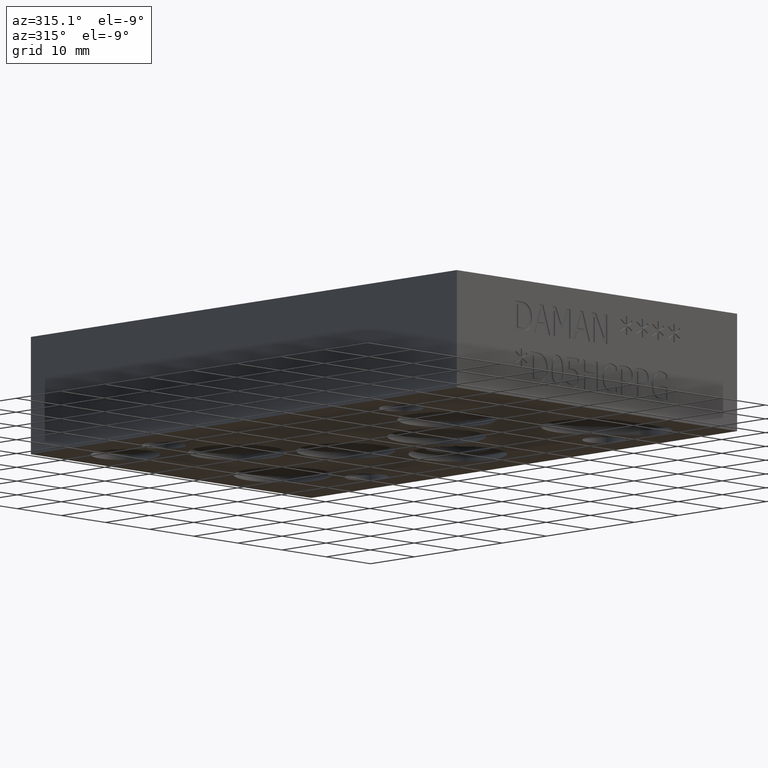
[diagram: clean part render]
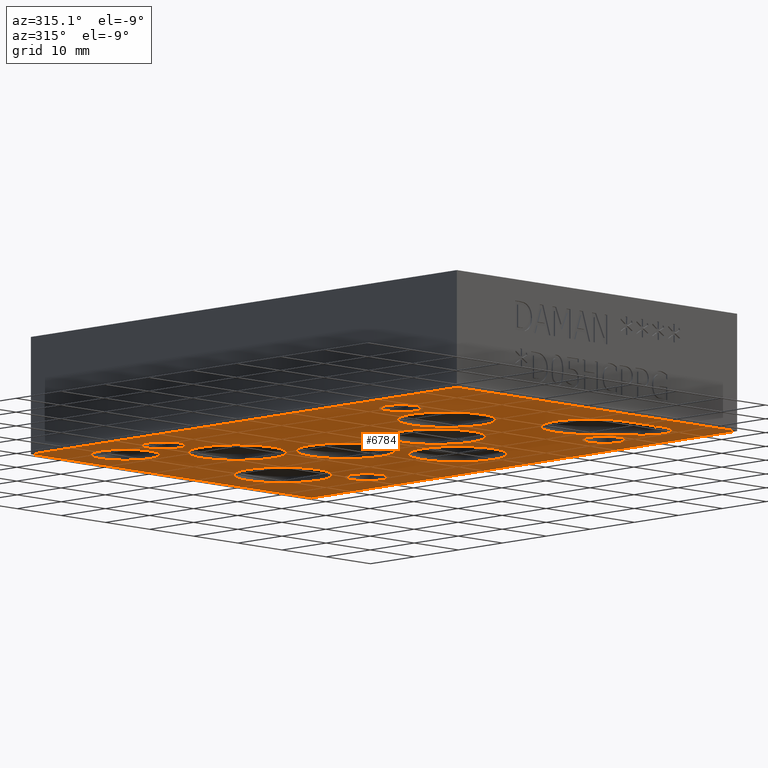
[diagram: same view with one face highlighted and labeled with its STEP entity id]
A machine part, auxiliary view. The second image highlights one B-rep face of the part: STEP entity #6784.
In plain terms, the highlighted planar face has unit normal (0, 0, 1).
Its self-contained STEP definition (entity closure, byte-faithful):
#38=CIRCLE('',#7073,0.1405);
#39=CIRCLE('',#7074,0.1405);
#40=CIRCLE('',#7075,0.1405);
#41=CIRCLE('',#7076,0.1405);
#42=CIRCLE('',#7077,0.1405);
#43=CIRCLE('',#7078,0.1405);
#44=CIRCLE('',#7079,0.1405);
#45=CIRCLE('',#7080,0.1405);
#46=CIRCLE('',#7081,0.3125);
#47=CIRCLE('',#7082,0.1875);
#48=CIRCLE('',#7083,0.3125);
#49=CIRCLE('',#7084,0.3125);
#50=CIRCLE('',#7085,0.219);
#51=CIRCLE('',#7086,0.219);
#52=CIRCLE('',#7087,0.3125);
#53=CIRCLE('',#7088,0.3125);
#54=CIRCLE('',#7089,0.3125);
#55=CIRCLE('',#7090,0.3125);
#56=CIRCLE('',#7091,0.3125);
#57=CIRCLE('',#7092,0.3125);
#58=CIRCLE('',#7093,0.3125);
#59=CIRCLE('',#7094,0.3125);
#60=CIRCLE('',#7095,0.3125);
#61=CIRCLE('',#7096,0.3125);
#113=FACE_BOUND('',#936,.T.);
#114=FACE_BOUND('',#937,.T.);
#115=FACE_BOUND('',#938,.T.);
#116=FACE_BOUND('',#939,.T.);
#117=FACE_BOUND('',#940,.T.);
#118=FACE_BOUND('',#941,.T.);
#119=FACE_BOUND('',#942,.T.);
#120=FACE_BOUND('',#943,.T.);
#121=FACE_BOUND('',#944,.T.);
#122=FACE_BOUND('',#945,.T.);
#123=FACE_BOUND('',#946,.T.);
#124=FACE_BOUND('',#947,.T.);
#548=FACE_OUTER_BOUND('',#935,.T.);
#935=EDGE_LOOP('',(#6059,#6060,#6061,#6062));
#936=EDGE_LOOP('',(#6063,#6064));
#937=EDGE_LOOP('',(#6065,#6066));
#938=EDGE_LOOP('',(#6067,#6068));
#939=EDGE_LOOP('',(#6069,#6070));
#940=EDGE_LOOP('',(#6071,#6072,#6073,#6074));
#941=EDGE_LOOP('',(#6075,#6076));
#942=EDGE_LOOP('',(#6077,#6078));
#943=EDGE_LOOP('',(#6079,#6080));
#944=EDGE_LOOP('',(#6081,#6082));
#945=EDGE_LOOP('',(#6083,#6084));
#946=EDGE_LOOP('',(#6085,#6086));
#947=EDGE_LOOP('',(#6087,#6088));
#1646=LINE('',#11595,#2379);
#1685=LINE('',#11853,#2418);
#1691=LINE('',#11866,#2424);
#1693=LINE('',#11873,#2426);
#1694=LINE('',#11875,#2427);
#1695=LINE('',#11876,#2428);
#2379=VECTOR('',#8238,2.5);
#2418=VECTOR('',#8323,0.342614195557747);
#2424=VECTOR('',#8331,0.321487157518517);
#2426=VECTOR('',#8341,3.812);
#2427=VECTOR('',#8342,2.5);
#2428=VECTOR('',#8343,3.812);
#3196=VERTEX_POINT('',#11592);
#3197=VERTEX_POINT('',#11594);
#3240=VERTEX_POINT('',#11850);
#3241=VERTEX_POINT('',#11852);
#3246=VERTEX_POINT('',#11863);
#3247=VERTEX_POINT('',#11865);
#3248=VERTEX_POINT('',#11872);
#3249=VERTEX_POINT('',#11874);
#3250=VERTEX_POINT('',#11877);
#3251=VERTEX_POINT('',#11878);
#3252=VERTEX_POINT('',#11881);
#3253=VERTEX_POINT('',#11882);
#3254=VERTEX_POINT('',#11885);
#3255=VERTEX_POINT('',#11886);
#3256=VERTEX_POINT('',#11889);
#3257=VERTEX_POINT('',#11890);
#3258=VERTEX_POINT('',#11895);
#3259=VERTEX_POINT('',#11896);
#3260=VERTEX_POINT('',#11899);
#3261=VERTEX_POINT('',#11900);
#3262=VERTEX_POINT('',#11903);
#3263=VERTEX_POINT('',#11904);
#3264=VERTEX_POINT('',#11907);
#3265=VERTEX_POINT('',#11908);
#3266=VERTEX_POINT('',#11911);
#3267=VERTEX_POINT('',#11912);
#3268=VERTEX_POINT('',#11915);
#3269=VERTEX_POINT('',#11916);
#3270=VERTEX_POINT('',#11919);
#3271=VERTEX_POINT('',#11920);
#4133=EDGE_CURVE('',#3196,#3197,#1646,.T.);
#4194=EDGE_CURVE('',#3241,#3240,#1685,.T.);
#4200=EDGE_CURVE('',#3247,#3246,#1691,.T.);
#4204=EDGE_CURVE('',#3248,#3196,#1693,.T.);
#4205=EDGE_CURVE('',#3249,#3248,#1694,.T.);
#4206=EDGE_CURVE('',#3197,#3249,#1695,.T.);
#4207=EDGE_CURVE('',#3250,#3251,#38,.T.);
#4208=EDGE_CURVE('',#3251,#3250,#39,.T.);
#4209=EDGE_CURVE('',#3252,#3253,#40,.T.);
#4210=EDGE_CURVE('',#3253,#3252,#41,.T.);
#4211=EDGE_CURVE('',#3254,#3255,#42,.T.);
#4212=EDGE_CURVE('',#3255,#3254,#43,.T.);
#4213=EDGE_CURVE('',#3256,#3257,#44,.T.);
#4214=EDGE_CURVE('',#3257,#3256,#45,.T.);
#4215=EDGE_CURVE('',#3246,#3241,#46,.T.);
#4216=EDGE_CURVE('',#3240,#3247,#47,.T.);
#4217=EDGE_CURVE('',#3258,#3259,#48,.T.);
#4218=EDGE_CURVE('',#3259,#3258,#49,.T.);
#4219=EDGE_CURVE('',#3260,#3261,#50,.T.);
#4220=EDGE_CURVE('',#3261,#3260,#51,.T.);
#4221=EDGE_CURVE('',#3262,#3263,#52,.T.);
#4222=EDGE_CURVE('',#3263,#3262,#53,.T.);
#4223=EDGE_CURVE('',#3264,#3265,#54,.T.);
#4224=EDGE_CURVE('',#3265,#3264,#55,.T.);
#4225=EDGE_CURVE('',#3266,#3267,#56,.T.);
#4226=EDGE_CURVE('',#3267,#3266,#57,.T.);
#4227=EDGE_CURVE('',#3268,#3269,#58,.T.);
#4228=EDGE_CURVE('',#3269,#3268,#59,.T.);
#4229=EDGE_CURVE('',#3270,#3271,#60,.T.);
#4230=EDGE_CURVE('',#3271,#3270,#61,.T.);
#6059=ORIENTED_EDGE('',*,*,#4133,.F.);
#6060=ORIENTED_EDGE('',*,*,#4204,.F.);
#6061=ORIENTED_EDGE('',*,*,#4205,.F.);
#6062=ORIENTED_EDGE('',*,*,#4206,.F.);
#6063=ORIENTED_EDGE('',*,*,#4207,.T.);
#6064=ORIENTED_EDGE('',*,*,#4208,.T.);
#6065=ORIENTED_EDGE('',*,*,#4209,.T.);
#6066=ORIENTED_EDGE('',*,*,#4210,.T.);
#6067=ORIENTED_EDGE('',*,*,#4211,.T.);
#6068=ORIENTED_EDGE('',*,*,#4212,.T.);
#6069=ORIENTED_EDGE('',*,*,#4213,.T.);
#6070=ORIENTED_EDGE('',*,*,#4214,.T.);
#6071=ORIENTED_EDGE('',*,*,#4200,.T.);
#6072=ORIENTED_EDGE('',*,*,#4215,.T.);
#6073=ORIENTED_EDGE('',*,*,#4194,.T.);
#6074=ORIENTED_EDGE('',*,*,#4216,.T.);
#6075=ORIENTED_EDGE('',*,*,#4217,.T.);
#6076=ORIENTED_EDGE('',*,*,#4218,.T.);
#6077=ORIENTED_EDGE('',*,*,#4219,.T.);
#6078=ORIENTED_EDGE('',*,*,#4220,.T.);
#6079=ORIENTED_EDGE('',*,*,#4221,.T.);
#6080=ORIENTED_EDGE('',*,*,#4222,.T.);
#6081=ORIENTED_EDGE('',*,*,#4223,.T.);
#6082=ORIENTED_EDGE('',*,*,#4224,.T.);
#6083=ORIENTED_EDGE('',*,*,#4225,.T.);
#6084=ORIENTED_EDGE('',*,*,#4226,.T.);
#6085=ORIENTED_EDGE('',*,*,#4227,.T.);
#6086=ORIENTED_EDGE('',*,*,#4228,.T.);
#6087=ORIENTED_EDGE('',*,*,#4229,.T.);
#6088=ORIENTED_EDGE('',*,*,#4230,.T.);
#6444=PLANE('',#7072);
#6784=ADVANCED_FACE('',(#548,#113,#114,#115,#116,#117,#118,#119,#120,#121,
#122,#123,#124),#6444,.F.);
#7072=AXIS2_PLACEMENT_3D('',#11871,#8339,#8340);
#7073=AXIS2_PLACEMENT_3D('',#11879,#8344,#8345);
#7074=AXIS2_PLACEMENT_3D('',#11880,#8346,#8347);
#7075=AXIS2_PLACEMENT_3D('',#11883,#8348,#8349);
#7076=AXIS2_PLACEMENT_3D('',#11884,#8350,#8351);
#7077=AXIS2_PLACEMENT_3D('',#11887,#8352,#8353);
#7078=AXIS2_PLACEMENT_3D('',#11888,#8354,#8355);
#7079=AXIS2_PLACEMENT_3D('',#11891,#8356,#8357);
#7080=AXIS2_PLACEMENT_3D('',#11892,#8358,#8359);
#7081=AXIS2_PLACEMENT_3D('',#11893,#8360,#8361);
#7082=AXIS2_PLACEMENT_3D('',#11894,#8362,#8363);
#7083=AXIS2_PLACEMENT_3D('',#11897,#8364,#8365);
#7084=AXIS2_PLACEMENT_3D('',#11898,#8366,#8367);
#7085=AXIS2_PLACEMENT_3D('',#11901,#8368,#8369);
#7086=AXIS2_PLACEMENT_3D('',#11902,#8370,#8371);
#7087=AXIS2_PLACEMENT_3D('',#11905,#8372,#8373);
#7088=AXIS2_PLACEMENT_3D('',#11906,#8374,#8375);
#7089=AXIS2_PLACEMENT_3D('',#11909,#8376,#8377);
#7090=AXIS2_PLACEMENT_3D('',#11910,#8378,#8379);
#7091=AXIS2_PLACEMENT_3D('',#11913,#8380,#8381);
#7092=AXIS2_PLACEMENT_3D('',#11914,#8382,#8383);
#7093=AXIS2_PLACEMENT_3D('',#11917,#8384,#8385);
#7094=AXIS2_PLACEMENT_3D('',#11918,#8386,#8387);
#7095=AXIS2_PLACEMENT_3D('',#11921,#8388,#8389);
#7096=AXIS2_PLACEMENT_3D('',#11922,#8390,#8391);
#8238=DIRECTION('',(1.,0.,0.));
#8323=DIRECTION('',(0.999997610698818,-0.002186000149977,0.));
#8331=DIRECTION('',(-0.765571802102936,0.643350461121202,0.));
#8339=DIRECTION('center_axis',(0.,0.,1.));
#8340=DIRECTION('ref_axis',(1.,0.,0.));
#8341=DIRECTION('',(0.,-1.,0.));
#8342=DIRECTION('',(-1.,0.,0.));
#8343=DIRECTION('',(0.,1.,0.));
#8344=DIRECTION('center_axis',(0.,0.,1.));
#8345=DIRECTION('ref_axis',(1.,0.,0.));
#8346=DIRECTION('center_axis',(0.,0.,1.));
#8347=DIRECTION('ref_axis',(1.,0.,0.));
#8348=DIRECTION('center_axis',(0.,0.,1.));
#8349=DIRECTION('ref_axis',(1.,0.,0.));
#8350=DIRECTION('center_axis',(0.,0.,1.));
#8351=DIRECTION('ref_axis',(1.,0.,0.));
#8352=DIRECTION('center_axis',(0.,0.,1.));
#8353=DIRECTION('ref_axis',(1.,0.,0.));
#8354=DIRECTION('center_axis',(0.,0.,1.));
#8355=DIRECTION('ref_axis',(1.,0.,0.));
#8356=DIRECTION('center_axis',(0.,0.,1.));
#8357=DIRECTION('ref_axis',(1.,0.,0.));
#8358=DIRECTION('center_axis',(0.,0.,1.));
#8359=DIRECTION('ref_axis',(1.,0.,0.));
#8360=DIRECTION('center_axis',(0.,0.,1.));
#8361=DIRECTION('ref_axis',(1.,0.,0.));
#8362=DIRECTION('center_axis',(0.,0.,1.));
#8363=DIRECTION('ref_axis',(1.,0.,0.));
#8364=DIRECTION('center_axis',(0.,0.,1.));
#8365=DIRECTION('ref_axis',(1.,0.,0.));
#8366=DIRECTION('center_axis',(0.,0.,1.));
#8367=DIRECTION('ref_axis',(1.,0.,0.));
#8368=DIRECTION('center_axis',(0.,0.,1.));
#8369=DIRECTION('ref_axis',(1.,0.,0.));
#8370=DIRECTION('center_axis',(0.,0.,1.));
#8371=DIRECTION('ref_axis',(1.,0.,0.));
#8372=DIRECTION('center_axis',(0.,0.,1.));
#8373=DIRECTION('ref_axis',(1.,0.,0.));
#8374=DIRECTION('center_axis',(0.,0.,1.));
#8375=DIRECTION('ref_axis',(1.,0.,0.));
#8376=DIRECTION('center_axis',(0.,0.,1.));
#8377=DIRECTION('ref_axis',(1.,0.,0.));
#8378=DIRECTION('center_axis',(0.,0.,1.));
#8379=DIRECTION('ref_axis',(1.,0.,0.));
#8380=DIRECTION('center_axis',(0.,0.,1.));
#8381=DIRECTION('ref_axis',(1.,0.,0.));
#8382=DIRECTION('center_axis',(0.,0.,1.));
#8383=DIRECTION('ref_axis',(1.,0.,0.));
#8384=DIRECTION('center_axis',(0.,0.,1.));
#8385=DIRECTION('ref_axis',(1.,0.,0.));
#8386=DIRECTION('center_axis',(0.,0.,1.));
#8387=DIRECTION('ref_axis',(1.,0.,0.));
#8388=DIRECTION('center_axis',(0.,0.,1.));
#8389=DIRECTION('ref_axis',(1.,0.,0.));
#8390=DIRECTION('center_axis',(0.,0.,1.));
#8391=DIRECTION('ref_axis',(1.,0.,0.));
#11592=CARTESIAN_POINT('',(0.,0.,0.));
#11594=CARTESIAN_POINT('',(2.5,0.,0.));
#11595=CARTESIAN_POINT('',(0.,0.,0.));
#11850=CARTESIAN_POINT('',(2.06193025190238,0.218251791973746,0.));
#11852=CARTESIAN_POINT('',(1.71931687495313,0.219000746656619,0.));
#11853=CARTESIAN_POINT('',(1.71931687495313,0.21900074665662,0.));
#11863=CARTESIAN_POINT('',(1.93725670892582,0.756123623928383,0.));
#11865=CARTESIAN_POINT('',(2.18337821146023,0.549294712894301,0.));
#11866=CARTESIAN_POINT('',(2.18337821146023,0.549294712894301,0.));
#11871=CARTESIAN_POINT('Origin',(1.25,1.906,0.));
#11872=CARTESIAN_POINT('',(0.,3.812,0.));
#11873=CARTESIAN_POINT('',(0.,3.812,0.));
#11874=CARTESIAN_POINT('',(2.5,3.812,0.));
#11875=CARTESIAN_POINT('',(2.5,3.812,0.));
#11876=CARTESIAN_POINT('',(2.5,0.,0.));
#11877=CARTESIAN_POINT('',(2.29725,2.96925,0.));
#11878=CARTESIAN_POINT('',(2.01625,2.96925,0.));
#11879=CARTESIAN_POINT('Origin',(2.15675,2.96925,0.));
#11880=CARTESIAN_POINT('Origin',(2.15675,2.96925,0.));
#11881=CARTESIAN_POINT('',(0.48425,2.96875,0.));
#11882=CARTESIAN_POINT('',(0.20325,2.96875,0.));
#11883=CARTESIAN_POINT('Origin',(0.34375,2.96875,0.));
#11884=CARTESIAN_POINT('Origin',(0.34375,2.96875,0.));
#11885=CARTESIAN_POINT('',(2.29725,0.84375,0.));
#11886=CARTESIAN_POINT('',(2.01625,0.84375,0.));
#11887=CARTESIAN_POINT('Origin',(2.15675,0.84375,0.));
#11888=CARTESIAN_POINT('Origin',(2.15675,0.84375,0.));
#11889=CARTESIAN_POINT('',(0.48475,0.84375,0.));
#11890=CARTESIAN_POINT('',(0.20375,0.84375,0.));
#11891=CARTESIAN_POINT('Origin',(0.34425,0.84375,0.));
#11892=CARTESIAN_POINT('Origin',(0.34425,0.84375,0.));
#11893=CARTESIAN_POINT('Origin',(1.72,0.5315,0.));
#11894=CARTESIAN_POINT('Origin',(2.06275,0.40575,0.));
#11895=CARTESIAN_POINT('',(2.0325,3.2815,0.));
#11896=CARTESIAN_POINT('',(1.4075,3.2815,0.));
#11897=CARTESIAN_POINT('Origin',(1.72,3.2815,0.));
#11898=CARTESIAN_POINT('Origin',(1.72,3.2815,0.));
#11899=CARTESIAN_POINT('',(0.65675,3.40675,0.));
#11900=CARTESIAN_POINT('',(0.21875,3.40675,0.));
#11901=CARTESIAN_POINT('Origin',(0.43775,3.40675,0.));
#11902=CARTESIAN_POINT('Origin',(0.43775,3.40675,0.));
#11903=CARTESIAN_POINT('',(1.18825,0.96875,0.));
#11904=CARTESIAN_POINT('',(0.56325,0.96875,0.));
#11905=CARTESIAN_POINT('Origin',(0.87575,0.96875,0.));
#11906=CARTESIAN_POINT('Origin',(0.87575,0.96875,0.));
#11907=CARTESIAN_POINT('',(1.62625,1.49975,0.));
#11908=CARTESIAN_POINT('',(1.00125,1.49975,0.));
#11909=CARTESIAN_POINT('Origin',(1.31375,1.49975,0.));
#11910=CARTESIAN_POINT('Origin',(1.31375,1.49975,0.));
#11911=CARTESIAN_POINT('',(2.22025,1.90575,0.));
#11912=CARTESIAN_POINT('',(1.59525,1.90575,0.));
#11913=CARTESIAN_POINT('Origin',(1.90775,1.90575,0.));
#11914=CARTESIAN_POINT('Origin',(1.90775,1.90575,0.));
#11915=CARTESIAN_POINT('',(1.62525,2.31275,0.));
#11916=CARTESIAN_POINT('',(1.00025,2.31275,0.));
#11917=CARTESIAN_POINT('Origin',(1.31275,2.31275,0.));
#11918=CARTESIAN_POINT('Origin',(1.31275,2.31275,0.));
#11919=CARTESIAN_POINT('',(1.18825,2.84375,0.));
#11920=CARTESIAN_POINT('',(0.56325,2.84375,0.));
#11921=CARTESIAN_POINT('Origin',(0.87575,2.84375,0.));
#11922=CARTESIAN_POINT('Origin',(0.87575,2.84375,0.));